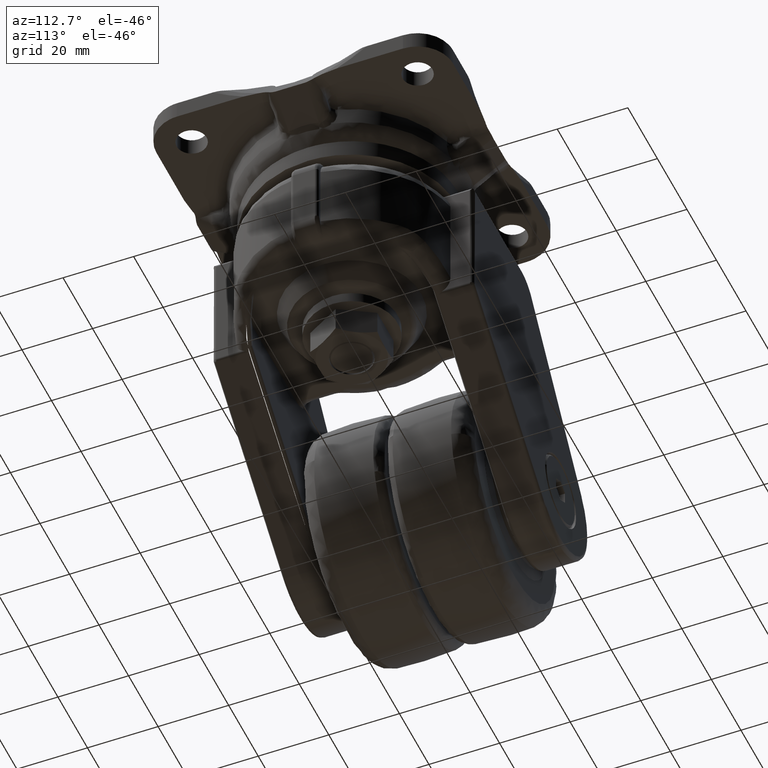
[diagram: clean part render]
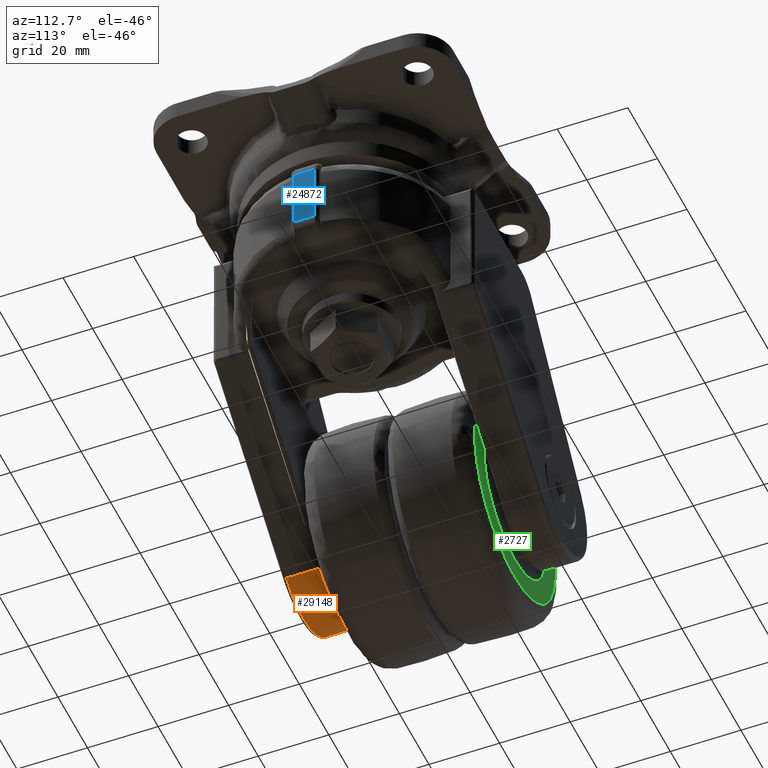
[diagram: same view with three faces highlighted in distinct colors, each labeled with its STEP entity id]
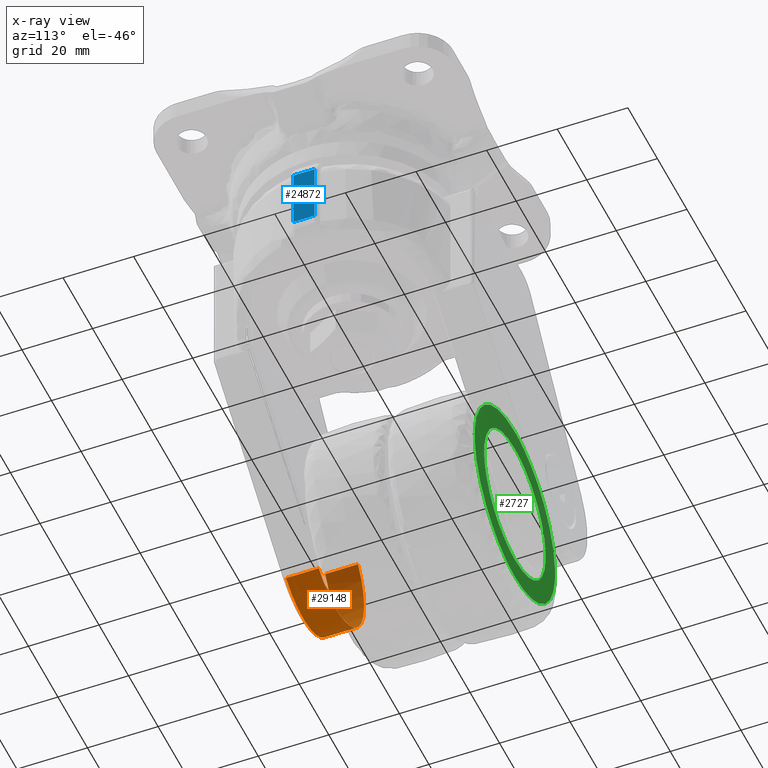
[diagram: x-ray of the same camera — body ghosted, the three highlighted faces saturated]
A machine part, auxiliary view with three faces highlighted in distinct colors.
The next image is the same camera in x-ray (body ghosted, the three faces saturated) — at least one of them is partly hidden behind the body in this view.
Their STEP definitions:

[orange] entity #29148 — the highlighted face is a freeform B-spline surface patch.
#27321=CARTESIAN_POINT('',(-41.319339999999997,-26.649999999999999,-79.485399999999998));
#27322=VERTEX_POINT('',#27321);
#27369=CARTESIAN_POINT('',(-67.847195873856691,-26.649999999999999,-52.644167060752999));
#27370=VERTEX_POINT('',#27369);
#27404=CARTESIAN_POINT('',(-67.847195873856649,-26.649999999999999,-52.644167060753020));
#27405=CARTESIAN_POINT('',(-78.386579778830864,-26.650000000000006,-65.842758676270748));
#27406=CARTESIAN_POINT('',(-66.513684763762598,-26.649999999999999,-77.855909707153998));
#27407=CARTESIAN_POINT('',(-54.640789748694338,-26.650000000000006,-89.869060738037263));
#27408=CARTESIAN_POINT('',(-41.319339999999997,-26.649999999999999,-79.485399999999998));
#27416=(BOUNDED_CURVE()B_SPLINE_CURVE(2,(#27404,#27405,#27406,#27407,#27408),.UNSPECIFIED.,.F.,.U.)B_SPLINE_CURVE_WITH_KNOTS((3,2,3),(0.0,0.500000000000000,1.0),.UNSPECIFIED.)CURVE()GEOMETRIC_REPRESENTATION_ITEM()RATIONAL_B_SPLINE_CURVE((1.0,0.747382218576726,1.0,0.747382218576726,1.0))REPRESENTATION_ITEM(''));
#27417=EDGE_CURVE('',#27370,#27322,#27416,.T.);
#28752=CARTESIAN_POINT('',(-67.847195873856691,-35.950000000000003,-52.644167060752999));
#28753=VERTEX_POINT('',#28752);
#28850=CARTESIAN_POINT('',(-41.319339999999997,-35.950000000000003,-79.485399999999998));
#28851=VERTEX_POINT('',#28850);
#28885=CARTESIAN_POINT('',(-41.319339999999997,-35.950000000000003,-79.485399999999998));
#28886=CARTESIAN_POINT('',(-54.640789748694338,-35.949999999999996,-89.869060738037277));
#28887=CARTESIAN_POINT('',(-66.513684763762598,-35.950000000000003,-77.855909707154012));
#28888=CARTESIAN_POINT('',(-78.386579778830864,-35.949999999999996,-65.842758676270748));
#28889=CARTESIAN_POINT('',(-67.847195873856649,-35.950000000000003,-52.644167060753020));
#28897=(BOUNDED_CURVE()B_SPLINE_CURVE(2,(#28885,#28886,#28887,#28888,#28889),.UNSPECIFIED.,.F.,.U.)B_SPLINE_CURVE_WITH_KNOTS((3,2,3),(0.0,0.500000000000000,1.0),.UNSPECIFIED.)CURVE()GEOMETRIC_REPRESENTATION_ITEM()RATIONAL_B_SPLINE_CURVE((1.0,0.747382218576725,1.0,0.747382218576725,1.0))REPRESENTATION_ITEM(''));
#28898=EDGE_CURVE('',#28851,#28753,#28897,.T.);
#29116=CARTESIAN_POINT('',(-40.931071150742817,-26.417499999999990,-79.174500210622767));
#29117=CARTESIAN_POINT('',(-40.931071150742817,-36.188312500000009,-79.174500210622767));
#29118=CARTESIAN_POINT('',(-54.496039615278868,-26.417499999999993,-90.330903283375520));
#29119=CARTESIAN_POINT('',(-54.496039615278868,-36.188312500000016,-90.330903283375520));
#29120=CARTESIAN_POINT('',(-66.682346379923843,-26.417499999999990,-77.683072386199825));
#29121=CARTESIAN_POINT('',(-66.682346379923843,-36.188312500000009,-77.683072386199825));
#29122=CARTESIAN_POINT('',(-78.868653144568810,-26.417499999999993,-65.035241489024145));
#29123=CARTESIAN_POINT('',(-78.868653144568810,-36.188312500000016,-65.035241489024145));
#29124=CARTESIAN_POINT('',(-67.215937898065135,-26.417499999999990,-51.894163666049181));
#29125=CARTESIAN_POINT('',(-67.215937898065135,-36.188312500000009,-51.894163666049181));
#29133=(BOUNDED_SURFACE()B_SPLINE_SURFACE(1,2,((#29116,#29118,#29120,#29122,#29124),(#29117,#29119,#29121,#29123,#29125)),.UNSPECIFIED.,.F.,.F.,.U.)B_SPLINE_SURFACE_WITH_KNOTS((2,2),(3,2,3),(0.0,9.770812500000018),(0.0,29.745826615194840,59.491653230389687),.UNSPECIFIED.)GEOMETRIC_REPRESENTATION_ITEM()RATIONAL_B_SPLINE_SURFACE(((1.0,0.734322509435686,1.0,0.734322509435686,1.0),(1.0,0.734322509435686,1.0,0.734322509435686,1.0)))REPRESENTATION_ITEM('')SURFACE());
#29134=CARTESIAN_POINT('',(-67.847195873856691,-26.649999999999999,-52.644167060752999));
#29135=CARTESIAN_POINT('',(-67.847195873856691,-35.950000000000003,-52.644167060752999));
#29136=QUASI_UNIFORM_CURVE('',1,(#29134,#29135),.UNSPECIFIED.,.F.,.U.);
#29137=EDGE_CURVE('',#27370,#28753,#29136,.T.);
#29138=ORIENTED_EDGE('',*,*,#29137,.F.);
#29139=ORIENTED_EDGE('',*,*,#27417,.T.);
#29140=CARTESIAN_POINT('',(-41.319339999999997,-26.649999999999999,-79.485399999999998));
#29141=CARTESIAN_POINT('',(-41.319339999999997,-35.950000000000003,-79.485399999999998));
#29142=QUASI_UNIFORM_CURVE('',1,(#29140,#29141),.UNSPECIFIED.,.F.,.U.);
#29143=EDGE_CURVE('',#27322,#28851,#29142,.T.);
#29144=ORIENTED_EDGE('',*,*,#29143,.T.);
#29145=ORIENTED_EDGE('',*,*,#28898,.T.);
#29146=EDGE_LOOP('',(#29138,#29139,#29144,#29145));
#29147=FACE_OUTER_BOUND('',#29146,.T.);
#29148=ADVANCED_FACE('',(#29147),#29133,.T.);

[blue] entity #24872 — the highlighted face is a freeform B-spline surface patch.
#23871=CARTESIAN_POINT('',(32.299999999999997,2.949999000000150,-29.0));
#23872=VERTEX_POINT('',#23871);
#23963=CARTESIAN_POINT('',(32.299999999999997,2.949999000000150,-11.500000000000000));
#23964=VERTEX_POINT('',#23963);
#23978=CARTESIAN_POINT('',(32.299999999999997,2.949999000000150,-29.0));
#23979=CARTESIAN_POINT('',(32.299999999999997,2.949999000000150,-11.500000000000000));
#23980=QUASI_UNIFORM_CURVE('',1,(#23978,#23979),.UNSPECIFIED.,.F.,.U.);
#23981=EDGE_CURVE('',#23872,#23964,#23980,.T.);
#24302=CARTESIAN_POINT('',(32.299999999999997,-3.050000999999860,-29.0));
#24303=VERTEX_POINT('',#24302);
#24393=CARTESIAN_POINT('',(32.299999999999997,-3.050000999999860,-11.500000000000000));
#24394=VERTEX_POINT('',#24393);
#24416=CARTESIAN_POINT('',(32.299999999999997,-3.050000999999860,-11.500000000000000));
#24417=CARTESIAN_POINT('',(32.299999999999997,-3.050000999999860,-29.0));
#24418=QUASI_UNIFORM_CURVE('',1,(#24416,#24417),.UNSPECIFIED.,.F.,.U.);
#24419=EDGE_CURVE('',#24394,#24303,#24418,.T.);
#24792=CARTESIAN_POINT('',(32.299999999999997,2.949999000000150,-11.500000000000000));
#24793=CARTESIAN_POINT('',(32.299999999999997,-3.050000999999860,-11.500000000000000));
#24794=QUASI_UNIFORM_CURVE('',1,(#24792,#24793),.UNSPECIFIED.,.F.,.U.);
#24795=EDGE_CURVE('',#23964,#24394,#24794,.T.);
#24852=CARTESIAN_POINT('',(32.299999999999997,2.949999000000150,-29.0));
#24853=CARTESIAN_POINT('',(32.299999999999997,-3.050000999999860,-29.0));
#24854=QUASI_UNIFORM_CURVE('',1,(#24852,#24853),.UNSPECIFIED.,.F.,.U.);
#24855=EDGE_CURVE('',#23872,#24303,#24854,.T.);
#24861=CARTESIAN_POINT('',(32.299999999999997,-3.349700932046990,-29.874124966081610));
#24862=CARTESIAN_POINT('',(32.299999999999997,-3.349700932046990,-10.625874564531820));
#24863=CARTESIAN_POINT('',(32.299999999999997,3.249699146624001,-29.874124966081610));
#24864=CARTESIAN_POINT('',(32.299999999999997,3.249699146624001,-10.625874564531820));
#24865=B_SPLINE_SURFACE_WITH_KNOTS('',1,1,((#24861,#24863),(#24862,#24864)),.UNSPECIFIED.,.F.,.F.,.U.,(2,2),(2,2),(0.0,19.248250401549790),(0.0,6.599400078670991),.UNSPECIFIED.);
#24866=ORIENTED_EDGE('',*,*,#24855,.F.);
#24867=ORIENTED_EDGE('',*,*,#23981,.T.);
#24868=ORIENTED_EDGE('',*,*,#24795,.T.);
#24869=ORIENTED_EDGE('',*,*,#24419,.T.);
#24870=EDGE_LOOP('',(#24866,#24867,#24868,#24869));
#24871=FACE_OUTER_BOUND('',#24870,.T.);
#24872=ADVANCED_FACE('',(#24871),#24865,.F.);

[green] entity #2727 — the highlighted face is a freeform B-spline surface patch.
#1360=CARTESIAN_POINT('',(-35.942995612504220,24.000000002092442,-52.574885872383561));
#1361=VERTEX_POINT('',#1360);
#1375=CARTESIAN_POINT('',(-53.0,24.000000001846150,-85.312249894302937));
#1376=VERTEX_POINT('',#1375);
#1377=CARTESIAN_POINT('',(-35.942995612504227,24.000000002092435,-52.574885872383554));
#1378=CARTESIAN_POINT('',(-32.187750105697042,24.000000001846157,-57.946175269203707));
#1379=CARTESIAN_POINT('',(-32.187750105697049,24.000000001846150,-64.500000000000000));
#1380=CARTESIAN_POINT('',(-32.187750105697056,24.000000001846153,-85.312249894302951));
#1381=CARTESIAN_POINT('',(-53.0,24.000000001846150,-85.312249894302937));
#1389=(BOUNDED_CURVE()B_SPLINE_CURVE(2,(#1377,#1378,#1379,#1380,#1381),.UNSPECIFIED.,.F.,.U.)B_SPLINE_CURVE_WITH_KNOTS((3,2,3),(0.151511728852196,0.250000000000000,0.500000000000000),.UNSPECIFIED.)CURVE()GEOMETRIC_REPRESENTATION_ITEM()RATIONAL_B_SPLINE_CURVE((0.860141114566757,0.884613812992591,1.0,0.707106781186548,1.0))REPRESENTATION_ITEM(''));
#1390=EDGE_CURVE('',#1361,#1376,#1389,.T.);
#1392=CARTESIAN_POINT('',(-63.930065636217982,24.000000002445351,-46.788890187935678));
#1393=VERTEX_POINT('',#1392);
#1394=CARTESIAN_POINT('',(-53.0,24.000000001846150,-85.312249894302937));
#1395=CARTESIAN_POINT('',(-73.812249894302965,24.000000001846153,-85.312249894302951));
#1396=CARTESIAN_POINT('',(-73.812249894302951,24.000000001846150,-64.500000000000000));
#1397=CARTESIAN_POINT('',(-73.812249894302951,24.000000001846153,-52.887487265250137));
#1398=CARTESIAN_POINT('',(-63.930065636217975,24.000000002445351,-46.788890187935685));
#1406=(BOUNDED_CURVE()B_SPLINE_CURVE(2,(#1394,#1395,#1396,#1397,#1398),.UNSPECIFIED.,.F.,.U.)B_SPLINE_CURVE_WITH_KNOTS((3,2,3),(0.500000000000000,0.750000000000000,0.910237044383479),.UNSPECIFIED.)CURVE()GEOMETRIC_REPRESENTATION_ITEM()RATIONAL_B_SPLINE_CURVE((1.0,0.707106781186548,1.0,0.812270625189475,0.865190851687725))REPRESENTATION_ITEM(''));
#1407=EDGE_CURVE('',#1376,#1393,#1406,.T.);
#1446=CARTESIAN_POINT('',(-53.0,24.000000001846150,-43.687750105697063));
#1447=VERTEX_POINT('',#1446);
#1448=CARTESIAN_POINT('',(-63.930065636217975,24.000000002445347,-46.788890187935678));
#1449=CARTESIAN_POINT('',(-58.904969325973362,24.000000001846146,-43.687750105697049));
#1450=CARTESIAN_POINT('',(-53.0,24.000000001846150,-43.687750105697063));
#1458=(BOUNDED_CURVE()B_SPLINE_CURVE(2,(#1448,#1449,#1450),.UNSPECIFIED.,.F.,.U.)B_SPLINE_CURVE_WITH_KNOTS((3,3),(0.910237044383479,1.0),.UNSPECIFIED.)CURVE()GEOMETRIC_REPRESENTATION_ITEM()RATIONAL_B_SPLINE_CURVE((0.865190851687725,0.894836155997072,1.0))REPRESENTATION_ITEM(''));
#1459=EDGE_CURVE('',#1393,#1447,#1458,.T.);
#1461=CARTESIAN_POINT('',(-53.0,24.000000001846150,-43.687750105697063));
#1462=CARTESIAN_POINT('',(-42.156285230255520,24.000000001846150,-43.687750105697056));
#1463=CARTESIAN_POINT('',(-35.942995612504227,24.000000002092435,-52.574885872383554));
#1471=(BOUNDED_CURVE()B_SPLINE_CURVE(2,(#1461,#1462,#1463),.UNSPECIFIED.,.F.,.U.)B_SPLINE_CURVE_WITH_KNOTS((3,3),(0.0,0.151511728852197),.UNSPECIFIED.)CURVE()GEOMETRIC_REPRESENTATION_ITEM()RATIONAL_B_SPLINE_CURVE((1.0,0.822492968193956,0.860141114566757))REPRESENTATION_ITEM(''));
#1472=EDGE_CURVE('',#1447,#1361,#1471,.T.);
#1501=CARTESIAN_POINT('',(-25.845805581664500,24.0,-66.551266575362220));
#1502=VERTEX_POINT('',#1501);
#1503=CARTESIAN_POINT('',(-53.0,24.0,-91.731562000000096));
#1504=VERTEX_POINT('',#1503);
#1505=CARTESIAN_POINT('',(-25.845805581664496,24.000000000000004,-66.551266575362220));
#1506=CARTESIAN_POINT('',(-27.747961014006695,24.000000000000004,-91.731562000000082));
#1507=CARTESIAN_POINT('',(-53.0,24.0,-91.731562000000096));
#1515=(BOUNDED_CURVE()B_SPLINE_CURVE(2,(#1505,#1506,#1507),.UNSPECIFIED.,.F.,.U.)B_SPLINE_CURVE_WITH_KNOTS((3,3),(0.263129840740324,0.500000000000000),.UNSPECIFIED.)CURVE()GEOMETRIC_REPRESENTATION_ITEM()RATIONAL_B_SPLINE_CURVE((0.970850634521615,0.722489346454314,1.0))REPRESENTATION_ITEM(''));
#1516=EDGE_CURVE('',#1502,#1504,#1515,.T.);
#1580=CARTESIAN_POINT('',(-80.154194419509963,24.0,-62.448733424501810));
#1581=VERTEX_POINT('',#1580);
#1595=CARTESIAN_POINT('',(-53.0,24.0,-91.731562000000096));
#1596=CARTESIAN_POINT('',(-80.231562000000110,23.999999999999996,-91.731562000000082));
#1597=CARTESIAN_POINT('',(-80.231562000000110,24.0,-64.500000000000000));
#1598=CARTESIAN_POINT('',(-80.231562000000110,24.0,-63.472907676376479));
#1599=CARTESIAN_POINT('',(-80.154194419509963,24.000000000000004,-62.448733424501818));
#1607=(BOUNDED_CURVE()B_SPLINE_CURVE(2,(#1595,#1596,#1597,#1598,#1599),.UNSPECIFIED.,.F.,.U.)B_SPLINE_CURVE_WITH_KNOTS((3,2,3),(0.500000000000000,0.750000000000000,0.763129840740919),.UNSPECIFIED.)CURVE()GEOMETRIC_REPRESENTATION_ITEM()RATIONAL_B_SPLINE_CURVE((1.0,0.707106781186548,1.0,0.984617434731537,0.970850634520368))REPRESENTATION_ITEM(''));
#1608=EDGE_CURVE('',#1504,#1581,#1607,.T.);
#1636=CARTESIAN_POINT('',(-53.0,24.0,-37.268437999999897));
#1637=VERTEX_POINT('',#1636);
#1638=CARTESIAN_POINT('',(-53.0,24.0,-37.268437999999897));
#1639=CARTESIAN_POINT('',(-25.768437999999904,23.999999999999996,-37.268437999999911));
#1640=CARTESIAN_POINT('',(-25.768437999999900,24.0,-64.500000000000000));
#1641=CARTESIAN_POINT('',(-25.768437999999897,24.000000000000004,-65.527092323576255));
#1642=CARTESIAN_POINT('',(-25.845805581664500,23.999999999999996,-66.551266575362220));
#1650=(BOUNDED_CURVE()B_SPLINE_CURVE(2,(#1638,#1639,#1640,#1641,#1642),.UNSPECIFIED.,.F.,.U.)B_SPLINE_CURVE_WITH_KNOTS((3,2,3),(0.0,0.250000000000000,0.263129840740324),.UNSPECIFIED.)CURVE()GEOMETRIC_REPRESENTATION_ITEM()RATIONAL_B_SPLINE_CURVE((1.0,0.707106781186548,1.0,0.984617434732234,0.970850634521615))REPRESENTATION_ITEM(''));
#1651=EDGE_CURVE('',#1637,#1502,#1650,.T.);
#1653=CARTESIAN_POINT('',(-80.154194419509963,24.0,-62.448733424501810));
#1654=CARTESIAN_POINT('',(-78.252038985905685,24.000000000000011,-37.268437999999897));
#1655=CARTESIAN_POINT('',(-53.0,24.0,-37.268437999999897));
#1663=(BOUNDED_CURVE()B_SPLINE_CURVE(2,(#1653,#1654,#1655),.UNSPECIFIED.,.F.,.U.)B_SPLINE_CURVE_WITH_KNOTS((3,3),(0.763129840740918,1.0),.UNSPECIFIED.)CURVE()GEOMETRIC_REPRESENTATION_ITEM()RATIONAL_B_SPLINE_CURVE((0.970850634520370,0.722489346455009,1.0))REPRESENTATION_ITEM(''));
#1664=EDGE_CURVE('',#1581,#1637,#1663,.T.);
#2710=CARTESIAN_POINT('',(-82.945682522556680,24.000000000923102,-94.451992893196646));
#2711=CARTESIAN_POINT('',(-82.945682522556680,24.000000000923102,-34.548003698235441));
#2712=CARTESIAN_POINT('',(-23.054314068957240,24.000000000923102,-94.451992893196646));
#2713=CARTESIAN_POINT('',(-23.054314068957240,24.000000000923102,-34.548003698235441));
#2714=B_SPLINE_SURFACE_WITH_KNOTS('',1,1,((#2710,#2712),(#2711,#2713)),.UNSPECIFIED.,.F.,.F.,.U.,(2,2),(2,2),(0.0,59.903989194961213),(0.0,59.891368453599441),.UNSPECIFIED.);
#2715=ORIENTED_EDGE('',*,*,#1651,.T.);
#2716=ORIENTED_EDGE('',*,*,#1516,.T.);
#2717=ORIENTED_EDGE('',*,*,#1608,.T.);
#2718=ORIENTED_EDGE('',*,*,#1664,.T.);
#2719=EDGE_LOOP('',(#2715,#2716,#2717,#2718));
#2720=FACE_OUTER_BOUND('',#2719,.T.);
#2721=ORIENTED_EDGE('',*,*,#1407,.F.);
#2722=ORIENTED_EDGE('',*,*,#1390,.F.);
#2723=ORIENTED_EDGE('',*,*,#1472,.F.);
#2724=ORIENTED_EDGE('',*,*,#1459,.F.);
#2725=EDGE_LOOP('',(#2721,#2722,#2723,#2724));
#2726=FACE_BOUND('',#2725,.T.);
#2727=ADVANCED_FACE('',(#2720,#2726),#2714,.T.);